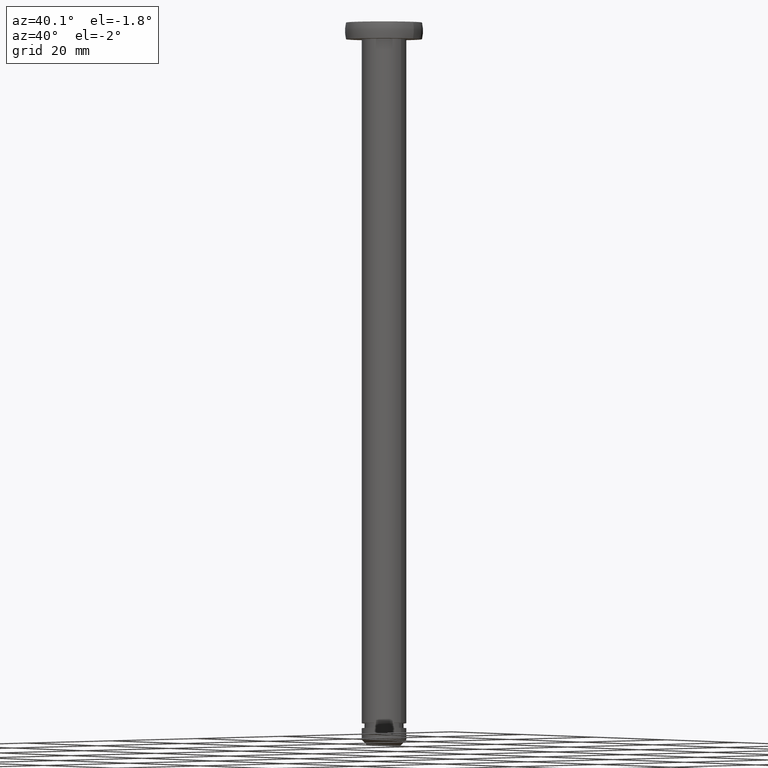
[diagram: clean part render]
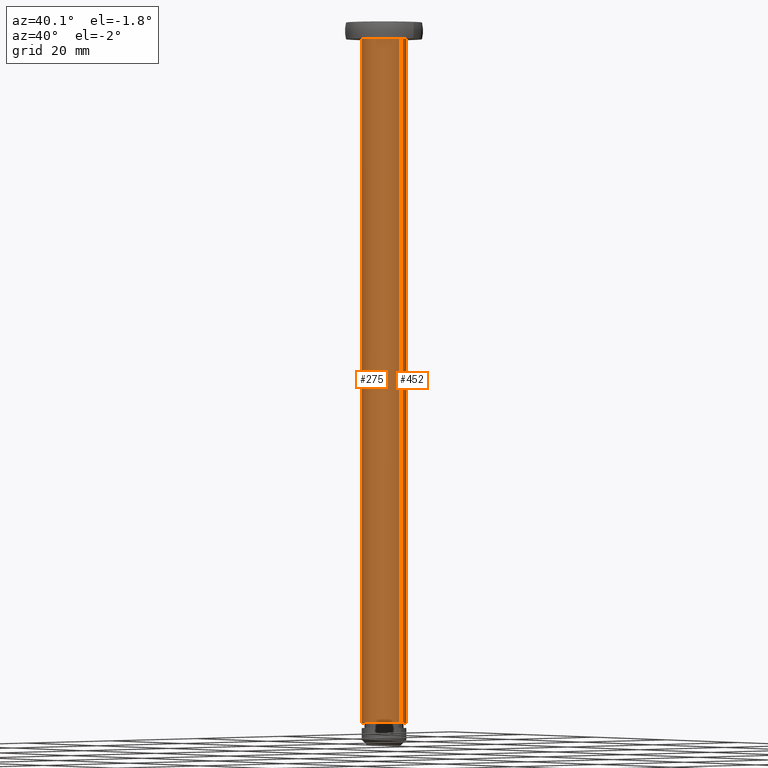
[diagram: same view with one multi-face feature highlighted, each face labeled with its STEP entity id]
A machine part, auxiliary view. The highlighted faces form ONE feature: a constant-radius fillet chain: 2 tangent blend faces with common blend radius 4 mm. The faces share edges in the B-rep.
Their STEP definitions:
[1] entity #452 (Cylinder):
#4 = ORIENTED_EDGE ( 'NONE', *, *, #158, .F. ) ;
#17 = CIRCLE ( 'NONE', #266, 4.000000000000000000 ) ;
#19 = LINE ( 'NONE', #377, #84 ) ;
#27 = DIRECTION ( 'NONE',  ( 0.0000000000000000000, 0.0000000000000000000, -1.000000000000000000 ) ) ;
#47 = DIRECTION ( 'NONE',  ( 0.0000000000000000000, 0.0000000000000000000, -1.000000000000000000 ) ) ;
#56 = EDGE_CURVE ( 'NONE', #439, #237, #19, .T. ) ;
#57 = VERTEX_POINT ( 'NONE', #337 ) ;
#64 = DIRECTION ( 'NONE',  ( 0.0000000000000000000, 0.0000000000000000000, -1.000000000000000000 ) ) ;
#66 = LINE ( 'NONE', #83, #349 ) ;
#82 = DIRECTION ( 'NONE',  ( -1.000000000000000000, 0.0000000000000000000, 0.0000000000000000000 ) ) ;
#83 = CARTESIAN_POINT ( 'NONE',  ( 4.000000000000000000, 4.898587196589412800E-016, 5.243895611412157900E-014 ) ) ;
#84 = VECTOR ( 'NONE', #384, 1000.000000000000000 ) ;
#134 = CIRCLE ( 'NONE', #146, 4.000000000000000000 ) ;
#136 = CARTESIAN_POINT ( 'NONE',  ( 0.0000000000000000000, 0.0000000000000000000, -3.000000018043495100 ) ) ;
#139 = ORIENTED_EDGE ( 'NONE', *, *, #310, .T. ) ;
#141 = CARTESIAN_POINT ( 'NONE',  ( -4.000000000000000000, 0.0000000000000000000, -3.000000018043495100 ) ) ;
#142 = CARTESIAN_POINT ( 'NONE',  ( -4.000000000000000000, 0.0000000000000000000, -126.0000000360870000 ) ) ;
#146 = AXIS2_PLACEMENT_3D ( 'NONE', #332, #318, #456 ) ;
#158 = EDGE_CURVE ( 'NONE', #237, #57, #134, .T. ) ;
#200 = DIRECTION ( 'NONE',  ( -1.000000000000000000, 0.0000000000000000000, 0.0000000000000000000 ) ) ;
#227 = EDGE_LOOP ( 'NONE', ( #311, #139, #4, #244 ) ) ;
#237 = VERTEX_POINT ( 'NONE', #142 ) ;
#244 = ORIENTED_EDGE ( 'NONE', *, *, #56, .F. ) ;
#266 = AXIS2_PLACEMENT_3D ( 'NONE', #136, #27, #82 ) ;
#295 = CARTESIAN_POINT ( 'NONE',  ( 0.0000000000000000000, 0.0000000000000000000, 5.243895611412157900E-014 ) ) ;
#310 = EDGE_CURVE ( 'NONE', #426, #57, #66, .T. ) ;
#311 = ORIENTED_EDGE ( 'NONE', *, *, #427, .T. ) ;
#317 = CYLINDRICAL_SURFACE ( 'NONE', #372, 4.000000000000000000 ) ;
#318 = DIRECTION ( 'NONE',  ( 0.0000000000000000000, 0.0000000000000000000, -1.000000000000000000 ) ) ;
#332 = CARTESIAN_POINT ( 'NONE',  ( 0.0000000000000000000, 0.0000000000000000000, -126.0000000360870000 ) ) ;
#337 = CARTESIAN_POINT ( 'NONE',  ( 4.000000000000000000, 4.898587196589412800E-016, -126.0000000360870000 ) ) ;
#349 = VECTOR ( 'NONE', #47, 1000.000000000000000 ) ;
#372 = AXIS2_PLACEMENT_3D ( 'NONE', #295, #64, #200 ) ;
#376 = CARTESIAN_POINT ( 'NONE',  ( 4.000000000000000000, 4.898587196589412800E-016, -3.000000018043495100 ) ) ;
#377 = CARTESIAN_POINT ( 'NONE',  ( -4.000000000000000000, 0.0000000000000000000, 5.243895611412157900E-014 ) ) ;
#384 = DIRECTION ( 'NONE',  ( 0.0000000000000000000, 0.0000000000000000000, -1.000000000000000000 ) ) ;
#426 = VERTEX_POINT ( 'NONE', #376 ) ;
#427 = EDGE_CURVE ( 'NONE', #439, #426, #17, .T. ) ;
#439 = VERTEX_POINT ( 'NONE', #141 ) ;
#448 = FACE_OUTER_BOUND ( 'NONE', #227, .T. ) ;
#452 = ADVANCED_FACE ( 'NONE', ( #448 ), #317, .T. ) ;
#456 = DIRECTION ( 'NONE',  ( -1.000000000000000000, 0.0000000000000000000, 0.0000000000000000000 ) ) ;
[2] entity #275 (Cylinder):
#19 = LINE ( 'NONE', #377, #84 ) ;
#42 = DIRECTION ( 'NONE',  ( 0.0000000000000000000, 0.0000000000000000000, -1.000000000000000000 ) ) ;
#47 = DIRECTION ( 'NONE',  ( 0.0000000000000000000, 0.0000000000000000000, -1.000000000000000000 ) ) ;
#56 = EDGE_CURVE ( 'NONE', #439, #237, #19, .T. ) ;
#57 = VERTEX_POINT ( 'NONE', #337 ) ;
#66 = LINE ( 'NONE', #83, #349 ) ;
#75 = DIRECTION ( 'NONE',  ( -1.000000000000000000, 0.0000000000000000000, 0.0000000000000000000 ) ) ;
#83 = CARTESIAN_POINT ( 'NONE',  ( 4.000000000000000000, 4.898587196589412800E-016, 5.243895611412157900E-014 ) ) ;
#84 = VECTOR ( 'NONE', #384, 1000.000000000000000 ) ;
#93 = ORIENTED_EDGE ( 'NONE', *, *, #310, .F. ) ;
#94 = CARTESIAN_POINT ( 'NONE',  ( 0.0000000000000000000, 0.0000000000000000000, 5.243895611412157900E-014 ) ) ;
#126 = DIRECTION ( 'NONE',  ( 0.0000000000000000000, 0.0000000000000000000, -1.000000000000000000 ) ) ;
#141 = CARTESIAN_POINT ( 'NONE',  ( -4.000000000000000000, 0.0000000000000000000, -3.000000018043495100 ) ) ;
#142 = CARTESIAN_POINT ( 'NONE',  ( -4.000000000000000000, 0.0000000000000000000, -126.0000000360870000 ) ) ;
#167 = AXIS2_PLACEMENT_3D ( 'NONE', #291, #408, #402 ) ;
#168 = CYLINDRICAL_SURFACE ( 'NONE', #423, 4.000000000000000000 ) ;
#193 = FACE_OUTER_BOUND ( 'NONE', #262, .T. ) ;
#223 = EDGE_CURVE ( 'NONE', #57, #237, #258, .T. ) ;
#237 = VERTEX_POINT ( 'NONE', #142 ) ;
#258 = CIRCLE ( 'NONE', #325, 4.000000000000000000 ) ;
#262 = EDGE_LOOP ( 'NONE', ( #93, #368, #447, #340 ) ) ;
#275 = ADVANCED_FACE ( 'NONE', ( #193 ), #168, .T. ) ;
#291 = CARTESIAN_POINT ( 'NONE',  ( 0.0000000000000000000, 0.0000000000000000000, -3.000000018043495100 ) ) ;
#310 = EDGE_CURVE ( 'NONE', #426, #57, #66, .T. ) ;
#325 = AXIS2_PLACEMENT_3D ( 'NONE', #390, #42, #75 ) ;
#337 = CARTESIAN_POINT ( 'NONE',  ( 4.000000000000000000, 4.898587196589412800E-016, -126.0000000360870000 ) ) ;
#340 = ORIENTED_EDGE ( 'NONE', *, *, #223, .F. ) ;
#349 = VECTOR ( 'NONE', #47, 1000.000000000000000 ) ;
#368 = ORIENTED_EDGE ( 'NONE', *, *, #382, .T. ) ;
#376 = CARTESIAN_POINT ( 'NONE',  ( 4.000000000000000000, 4.898587196589412800E-016, -3.000000018043495100 ) ) ;
#377 = CARTESIAN_POINT ( 'NONE',  ( -4.000000000000000000, 0.0000000000000000000, 5.243895611412157900E-014 ) ) ;
#382 = EDGE_CURVE ( 'NONE', #426, #439, #428, .T. ) ;
#384 = DIRECTION ( 'NONE',  ( 0.0000000000000000000, 0.0000000000000000000, -1.000000000000000000 ) ) ;
#390 = CARTESIAN_POINT ( 'NONE',  ( 0.0000000000000000000, 0.0000000000000000000, -126.0000000360870000 ) ) ;
#402 = DIRECTION ( 'NONE',  ( -1.000000000000000000, 0.0000000000000000000, 0.0000000000000000000 ) ) ;
#408 = DIRECTION ( 'NONE',  ( 0.0000000000000000000, 0.0000000000000000000, -1.000000000000000000 ) ) ;
#423 = AXIS2_PLACEMENT_3D ( 'NONE', #94, #126, #455 ) ;
#426 = VERTEX_POINT ( 'NONE', #376 ) ;
#428 = CIRCLE ( 'NONE', #167, 4.000000000000000000 ) ;
#439 = VERTEX_POINT ( 'NONE', #141 ) ;
#447 = ORIENTED_EDGE ( 'NONE', *, *, #56, .T. ) ;
#455 = DIRECTION ( 'NONE',  ( -1.000000000000000000, 0.0000000000000000000, 0.0000000000000000000 ) ) ;